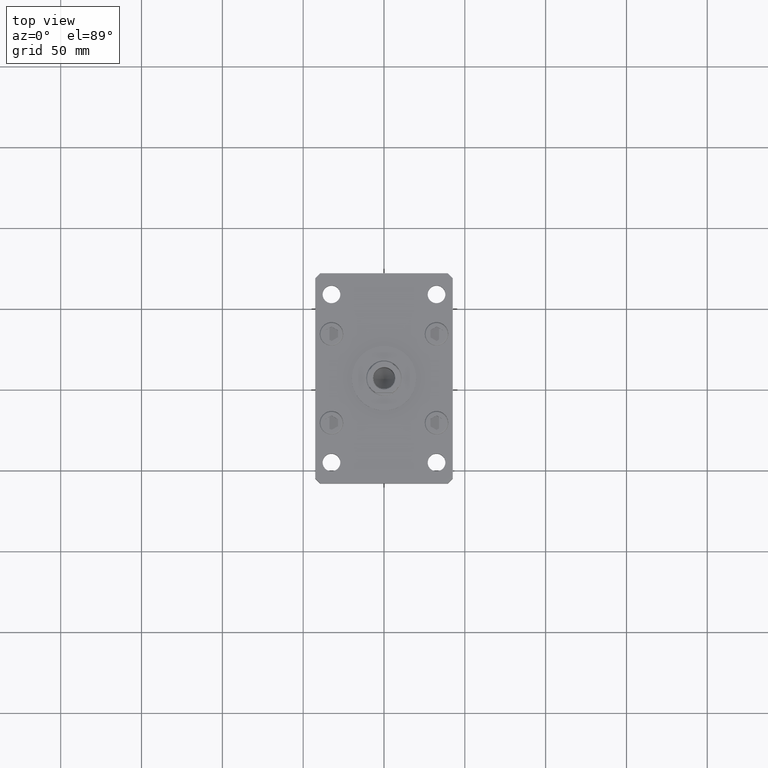
[diagram: clean part render]
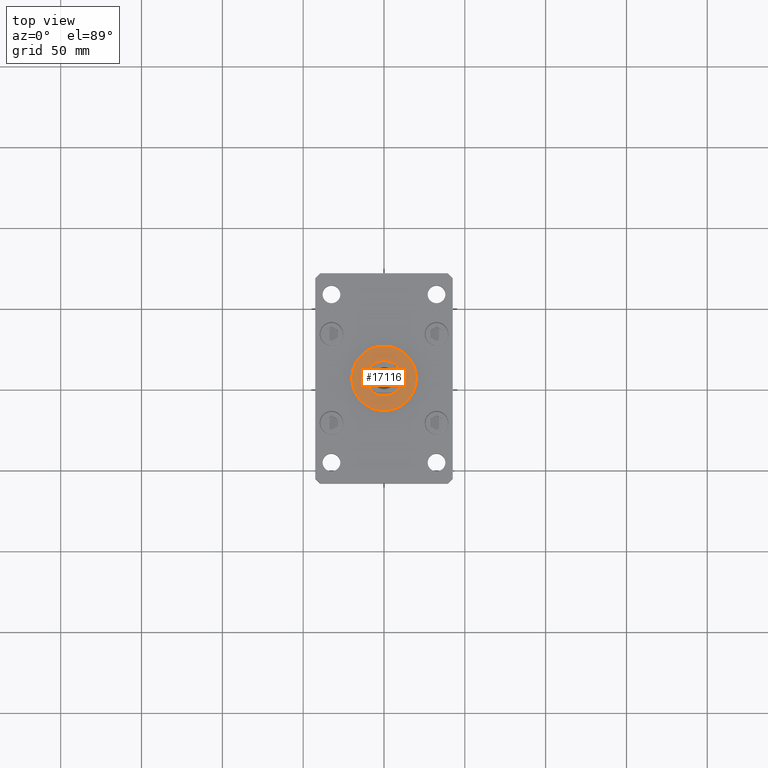
[diagram: same view with one face highlighted and labeled with its STEP entity id]
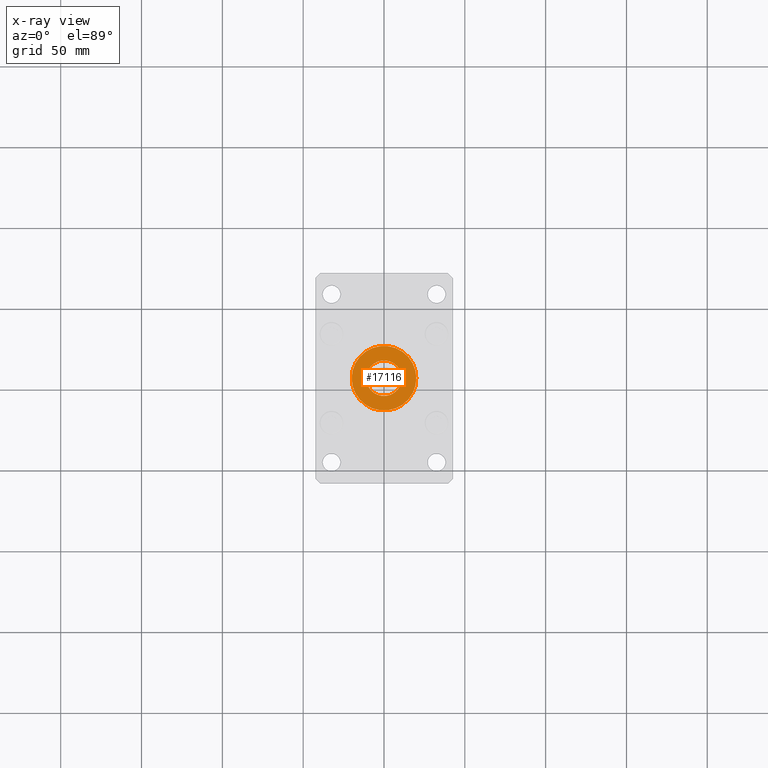
[diagram: x-ray of the same camera — body ghosted, the highlighted face saturated]
A machine part, top view. The second image highlights one B-rep face of the part: STEP entity #17116.
The next image is the same camera in x-ray: the body ghosted, the highlighted face saturated — about 0% of this face is hidden behind the body in this view.
In plain terms, the highlighted planar face has unit normal (0, 0, 1).
Its self-contained STEP definition (entity closure, byte-faithful):
#3230 = EDGE_LOOP ( 'NONE', ( #25846, #8222 ) ) ;
#3923 = EDGE_CURVE ( 'NONE', #15836, #27124, #6916, .T. ) ;
#6916 = CIRCLE ( 'NONE', #10345, 20.00000000000000000 ) ;
#7659 = CARTESIAN_POINT ( 'NONE',  ( 11.00000000000000000, 0.000000000000000000, 17.00000000000000000 ) ) ;
#8222 = ORIENTED_EDGE ( 'NONE', *, *, #27031, .T. ) ;
#9151 = CARTESIAN_POINT ( 'NONE',  ( 0.000000000000000000, 0.000000000000000000, 17.00000000000000000 ) ) ;
#9917 = DIRECTION ( 'NONE',  ( 0.000000000000000000, 0.000000000000000000, 1.000000000000000000 ) ) ;
#10345 = AXIS2_PLACEMENT_3D ( 'NONE', #46512, #9917, #26179 ) ;
#10610 = AXIS2_PLACEMENT_3D ( 'NONE', #29416, #29155, #37008 ) ;
#12930 = DIRECTION ( 'NONE',  ( 0.000000000000000000, 0.000000000000000000, 1.000000000000000000 ) ) ;
#15139 = CIRCLE ( 'NONE', #36855, 20.00000000000000000 ) ;
#15423 = DIRECTION ( 'NONE',  ( 0.000000000000000000, 0.000000000000000000, 1.000000000000000000 ) ) ;
#15836 = VERTEX_POINT ( 'NONE', #33337 ) ;
#16158 = PLANE ( 'NONE',  #10610 ) ;
#17116 = ADVANCED_FACE ( 'NONE', ( #28364, #53283 ), #16158, .T. ) ;
#18769 = CARTESIAN_POINT ( 'NONE',  ( -11.00000000000000000, 1.347111479062088405E-15, 17.00000000000000000 ) ) ;
#21992 = EDGE_CURVE ( 'NONE', #25164, #37839, #26359, .T. ) ;
#23430 = EDGE_LOOP ( 'NONE', ( #26682, #25821 ) ) ;
#24477 = AXIS2_PLACEMENT_3D ( 'NONE', #45697, #38100, #41628 ) ;
#25164 = VERTEX_POINT ( 'NONE', #18769 ) ;
#25821 = ORIENTED_EDGE ( 'NONE', *, *, #21992, .F. ) ;
#25846 = ORIENTED_EDGE ( 'NONE', *, *, #3923, .T. ) ;
#26179 = DIRECTION ( 'NONE',  ( 1.000000000000000000, 0.000000000000000000, 0.000000000000000000 ) ) ;
#26359 = CIRCLE ( 'NONE', #32412, 11.00000000000000000 ) ;
#26682 = ORIENTED_EDGE ( 'NONE', *, *, #37631, .F. ) ;
#27031 = EDGE_CURVE ( 'NONE', #27124, #15836, #15139, .T. ) ;
#27088 = DIRECTION ( 'NONE',  ( 1.000000000000000000, 0.000000000000000000, 0.000000000000000000 ) ) ;
#27124 = VERTEX_POINT ( 'NONE', #37312 ) ;
#28364 = FACE_BOUND ( 'NONE', #23430, .T. ) ;
#29155 = DIRECTION ( 'NONE',  ( 0.000000000000000000, 0.000000000000000000, 1.000000000000000000 ) ) ;
#29416 = CARTESIAN_POINT ( 'NONE',  ( 0.000000000000000000, 0.000000000000000000, 17.00000000000000000 ) ) ;
#31683 = CARTESIAN_POINT ( 'NONE',  ( 0.000000000000000000, 0.000000000000000000, 17.00000000000000000 ) ) ;
#32412 = AXIS2_PLACEMENT_3D ( 'NONE', #31683, #15423, #27088 ) ;
#33337 = CARTESIAN_POINT ( 'NONE',  ( -20.00000000000000000, 0.000000000000000000, 17.00000000000000000 ) ) ;
#36855 = AXIS2_PLACEMENT_3D ( 'NONE', #9151, #12930, #53593 ) ;
#37008 = DIRECTION ( 'NONE',  ( 1.000000000000000000, 0.000000000000000000, -0.000000000000000000 ) ) ;
#37312 = CARTESIAN_POINT ( 'NONE',  ( 20.00000000000000000, 2.449293598294706513E-15, 17.00000000000000000 ) ) ;
#37631 = EDGE_CURVE ( 'NONE', #37839, #25164, #47857, .T. ) ;
#37839 = VERTEX_POINT ( 'NONE', #7659 ) ;
#38100 = DIRECTION ( 'NONE',  ( 0.000000000000000000, 0.000000000000000000, 1.000000000000000000 ) ) ;
#41628 = DIRECTION ( 'NONE',  ( 1.000000000000000000, 0.000000000000000000, 0.000000000000000000 ) ) ;
#45697 = CARTESIAN_POINT ( 'NONE',  ( 0.000000000000000000, 0.000000000000000000, 17.00000000000000000 ) ) ;
#46512 = CARTESIAN_POINT ( 'NONE',  ( 0.000000000000000000, 0.000000000000000000, 17.00000000000000000 ) ) ;
#47857 = CIRCLE ( 'NONE', #24477, 11.00000000000000000 ) ;
#53283 = FACE_OUTER_BOUND ( 'NONE', #3230, .T. ) ;
#53593 = DIRECTION ( 'NONE',  ( 1.000000000000000000, 0.000000000000000000, 0.000000000000000000 ) ) ;